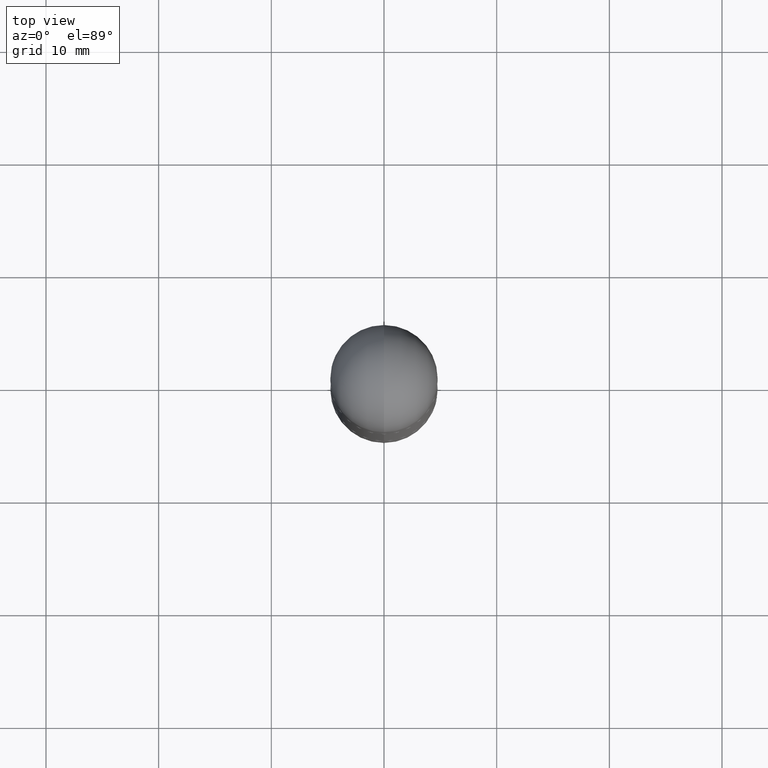
[diagram: clean part render]
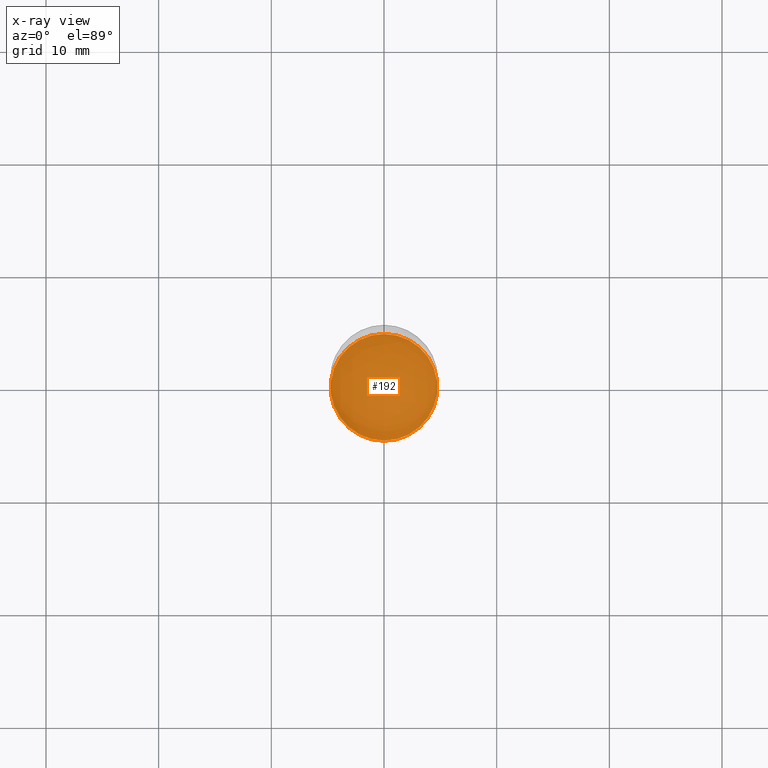
[diagram: x-ray — body ghosted, one internal face saturated and labeled with its STEP entity id]
A machine part, top view, then the same camera in x-ray: the body is ghosted and one INTERNAL B-rep face — a face not visible from any outside direction — is saturated and labeled: STEP entity #192.
In plain terms, the highlighted planar face has unit normal (-0, 0, 1).
Its self-contained STEP definition (entity closure, byte-faithful):
#2 = DIRECTION ( 'NONE',  ( -2.445919005488626364E-29, 3.490836627816795453E-15, 1.000000000000000000 ) ) ;
#48 = ORIENTED_EDGE ( 'NONE', *, *, #144, .F. ) ;
#56 = CARTESIAN_POINT ( 'NONE',  ( 4.740191032636957666E-29, -6.765241384708948197E-15, -1.937999999999999945 ) ) ;
#80 = PLANE ( 'NONE',  #116 ) ;
#98 = EDGE_LOOP ( 'NONE', ( #48, #588 ) ) ;
#102 = EDGE_CURVE ( 'NONE', #398, #226, #146, .T. ) ;
#116 = AXIS2_PLACEMENT_3D ( 'NONE', #722, #330, #526 ) ;
#142 = DIRECTION ( 'NONE',  ( -6.982962677686265922E-15, -1.000000000000000000, 2.929595703661408850E-15 ) ) ;
#144 = EDGE_CURVE ( 'NONE', #226, #398, #296, .T. ) ;
#146 = CIRCLE ( 'NONE', #601, 0.1864999999999999714 ) ;
#178 = CARTESIAN_POINT ( 'NONE',  ( 1.328714915871435071E-15, 0.1864999999999932268, -1.938000000000000389 ) ) ;
#192 = ADVANCED_FACE ( 'NONE', ( #713 ), #80, .F. ) ;
#203 = DIRECTION ( 'NONE',  ( -2.445919005488626364E-29, 3.490836627816795453E-15, 1.000000000000000000 ) ) ;
#226 = VERTEX_POINT ( 'NONE', #391 ) ;
#296 = CIRCLE ( 'NONE', #512, 0.1864999999999999714 ) ;
#330 = DIRECTION ( 'NONE',  ( -2.445919005488625803E-29, 3.490836627816795453E-15, 1.000000000000000000 ) ) ;
#376 = DIRECTION ( 'NONE',  ( -6.982962677686265922E-15, -1.000000000000000000, 2.929595703661408850E-15 ) ) ;
#391 = CARTESIAN_POINT ( 'NONE',  ( -1.302322539388441071E-15, -0.1865000000000067437, -1.937999999999999279 ) ) ;
#398 = VERTEX_POINT ( 'NONE', #178 ) ;
#512 = AXIS2_PLACEMENT_3D ( 'NONE', #638, #203, #142 ) ;
#526 = DIRECTION ( 'NONE',  ( -6.982962677686265922E-15, -1.000000000000000000, 3.490836627816795453E-15 ) ) ;
#588 = ORIENTED_EDGE ( 'NONE', *, *, #102, .F. ) ;
#601 = AXIS2_PLACEMENT_3D ( 'NONE', #56, #2, #376 ) ;
#638 = CARTESIAN_POINT ( 'NONE',  ( 4.740191032636957666E-29, -6.765241384708948197E-15, -1.937999999999999945 ) ) ;
#713 = FACE_OUTER_BOUND ( 'NONE', #98, .T. ) ;
#722 = CARTESIAN_POINT ( 'NONE',  ( 4.740191032636957666E-29, -6.765241384708948197E-15, -1.937999999999999945 ) ) ;